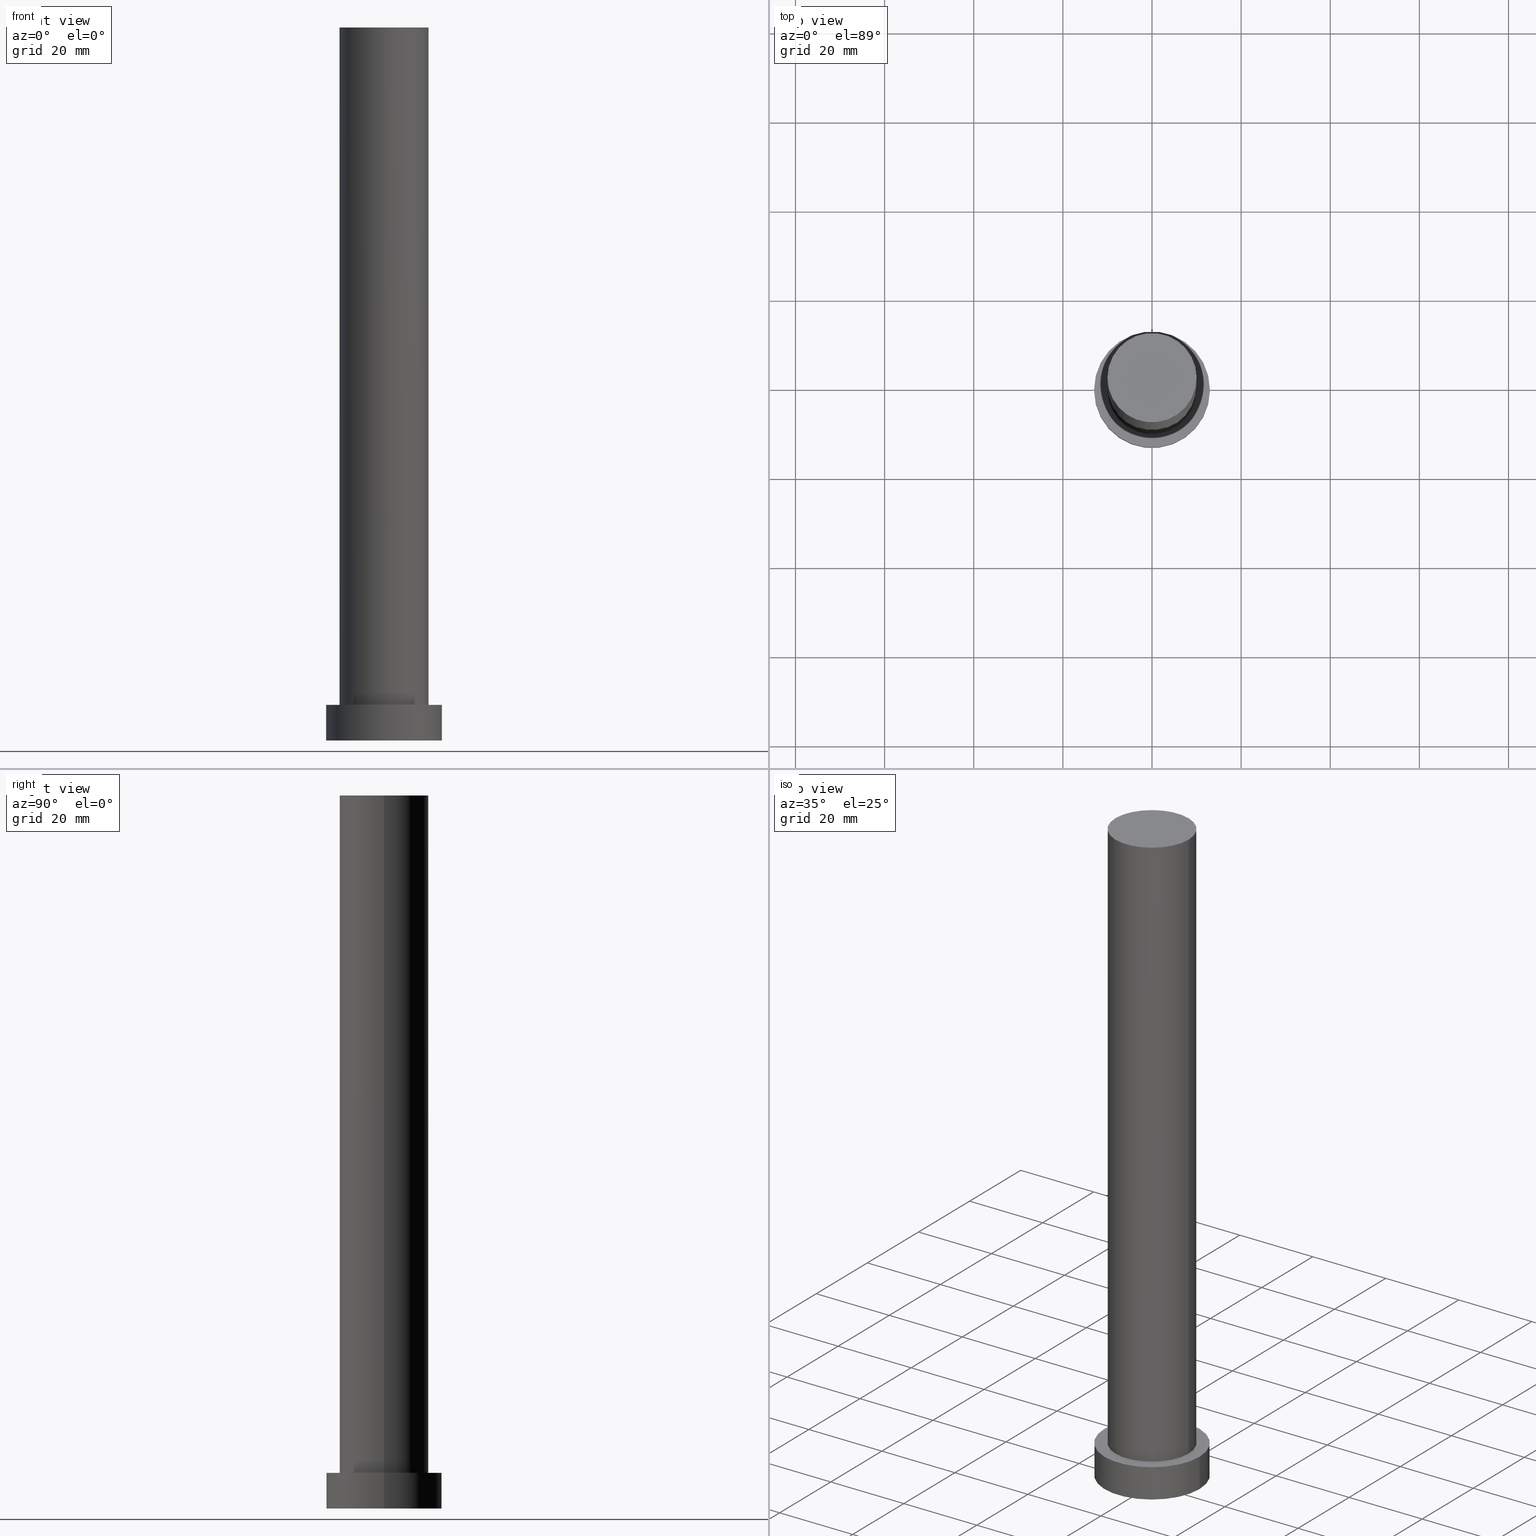
[diagram: canonical four-view strip — front | top / right | iso, engineering-drawing reading convention]
A machine part, canonical four-view strip (front | top / right | iso — engineering-drawing reading convention). The complete STEP part file that produces these views, byte-faithful:
ISO-10303-21;
HEADER;
FILE_DESCRIPTION (( 'STEP AP203' ),
    '1' );
FILE_NAME ('fc15.STEP',
    '2023-02-13T07:49:25',
    ( '' ),
    ( '' ),
    'SwSTEP 2.0',
    'SolidWorks 2019',
    '' );
FILE_SCHEMA (( 'CONFIG_CONTROL_DESIGN' ));
ENDSEC;

DATA;
#1 = AXIS2_PLACEMENT_3D ( 'NONE', #42, #127, #87 ) ;
#2 = CALENDAR_DATE ( 2023, 13, 2 ) ;
#3 = CARTESIAN_POINT ( 'NONE',  ( 0.000000000000000000, 0.000000000000000000, 8.000000000000000000 ) ) ;
#4 = CARTESIAN_POINT ( 'NONE',  ( 10.00000000000000000, 1.224646799147353256E-15, 8.000000000000000000 ) ) ;
#5 = CC_DESIGN_PERSON_AND_ORGANIZATION_ASSIGNMENT ( #203, #165, ( #143 ) ) ;
#6 = CIRCLE ( 'NONE', #117, 13.00000000000000178 ) ;
#7 = PLANE ( 'NONE',  #227 ) ;
#8 = DIRECTION ( 'NONE',  ( -1.000000000000000000, 0.000000000000000000, 0.000000000000000000 ) ) ;
#9 = DIRECTION ( 'NONE',  ( 1.000000000000000000, 0.000000000000000000, 0.000000000000000000 ) ) ;
#10 = APPROVAL_PERSON_ORGANIZATION ( #29, #171, #142 ) ;
#11 = LOCAL_TIME ( 8, 49, 25.00000000000000000, #12 ) ;
#12 = COORDINATED_UNIVERSAL_TIME_OFFSET ( 1, 0, .AHEAD. ) ;
#13 = FACE_OUTER_BOUND ( 'NONE', #90, .T. ) ;
#14 = AXIS2_PLACEMENT_3D ( 'NONE', #208, #166, #207 ) ;
#15 = DIRECTION ( 'NONE',  ( -0.000000000000000000, -0.000000000000000000, -1.000000000000000000 ) ) ;
#16 = ORIENTED_EDGE ( 'NONE', *, *, #255, .F. ) ;
#17 = ORIENTED_EDGE ( 'NONE', *, *, #149, .F. ) ;
#18 = DATE_AND_TIME ( #215, #194 ) ;
#19 = APPROVAL_ROLE ( '' ) ;
#20 = DIRECTION ( 'NONE',  ( 0.000000000000000000, 0.000000000000000000, 1.000000000000000000 ) ) ;
#21 = FACE_OUTER_BOUND ( 'NONE', #177, .T. ) ;
#22 = CYLINDRICAL_SURFACE ( 'NONE', #77, 13.00000000000000178 ) ;
#23 = FACE_OUTER_BOUND ( 'NONE', #47, .T. ) ;
#24 =( NAMED_UNIT ( * ) SI_UNIT ( $, .STERADIAN. ) SOLID_ANGLE_UNIT ( ) );
#25 = EDGE_CURVE ( 'NONE', #170, #51, #153, .T. ) ;
#26 = CIRCLE ( 'NONE', #61, 10.00000000000000000 ) ;
#27 = CC_DESIGN_DATE_AND_TIME_ASSIGNMENT ( #186, #119, ( #143 ) ) ;
#28 = DIRECTION ( 'NONE',  ( 1.000000000000000000, 0.000000000000000000, 0.000000000000000000 ) ) ;
#29 = PERSON_AND_ORGANIZATION ( #39, #224 ) ;
#30 = FACE_OUTER_BOUND ( 'NONE', #246, .T. ) ;
#31 = APPROVAL_DATE_TIME ( #93, #171 ) ;
#32 = CIRCLE ( 'NONE', #1, 13.00000000000000178 ) ;
#33 = ORIENTED_EDGE ( 'NONE', *, *, #132, .T. ) ;
#34 = PERSON_AND_ORGANIZATION ( #39, #224 ) ;
#35 = DIRECTION ( 'NONE',  ( 1.000000000000000000, 0.000000000000000000, 0.000000000000000000 ) ) ;
#36 = ORIENTED_EDGE ( 'NONE', *, *, #107, .T. ) ;
#37 = DIRECTION ( 'NONE',  ( 0.000000000000000000, 0.000000000000000000, 1.000000000000000000 ) ) ;
#38 = CALENDAR_DATE ( 2023, 13, 2 ) ;
#39 = PERSON ( 'NEUR�EN�', 'NEUR�EN�', 'NEUR�EN�', ('NEUR�EN�'), ('NEUR�EN�'), ('NEUR�EN�') ) ;
#40 = PRODUCT_DEFINITION_SHAPE ( 'NONE', 'NONE',  #236 ) ;
#41 = APPROVAL_PERSON_ORGANIZATION ( #196, #81, #154 ) ;
#42 = CARTESIAN_POINT ( 'NONE',  ( 0.000000000000000000, 0.000000000000000000, 8.000000000000000000 ) ) ;
#43 = CARTESIAN_POINT ( 'NONE',  ( -10.00000000000000000, 0.000000000000000000, 160.0000000000000000 ) ) ;
#44 = AXIS2_PLACEMENT_3D ( 'NONE', #169, #191, #237 ) ;
#45 =( NAMED_UNIT ( * ) PLANE_ANGLE_UNIT ( ) SI_UNIT ( $, .RADIAN. ) );
#46 = APPROVAL ( #97, 'NEUR�EN�' ) ;
#47 = EDGE_LOOP ( 'NONE', ( #233, #115, #36, #139 ) ) ;
#48 = CC_DESIGN_PERSON_AND_ORGANIZATION_ASSIGNMENT ( #91, #178, ( #236 ) ) ;
#49 = LOCAL_TIME ( 8, 49, 25.00000000000000000, #116 ) ;
#50 = CYLINDRICAL_SURFACE ( 'NONE', #180, 10.00000000000000000 ) ;
#51 = VERTEX_POINT ( 'NONE', #229 ) ;
#52 = CARTESIAN_POINT ( 'NONE',  ( 0.000000000000000000, 0.000000000000000000, 0.000000000000000000 ) ) ;
#53 = AXIS2_PLACEMENT_3D ( 'NONE', #162, #74, #216 ) ;
#54 = EDGE_CURVE ( 'NONE', #92, #51, #6, .T. ) ;
#55 = LINE ( 'NONE', #248, #69 ) ;
#56 = VERTEX_POINT ( 'NONE', #228 ) ;
#57 = APPROVAL_STATUS ( 'not_yet_approved' ) ;
#58 = ORIENTED_EDGE ( 'NONE', *, *, #255, .T. ) ;
#59 = MECHANICAL_CONTEXT ( 'NONE', #121, 'mechanical' ) ;
#60 = PERSON_AND_ORGANIZATION ( #39, #224 ) ;
#61 = AXIS2_PLACEMENT_3D ( 'NONE', #3, #128, #84 ) ;
#62 = CARTESIAN_POINT ( 'NONE',  ( 0.000000000000000000, 0.000000000000000000, 8.000000000000000000 ) ) ;
#63 = SECURITY_CLASSIFICATION_LEVEL ( 'unclassified' ) ;
#64 = DIRECTION ( 'NONE',  ( -0.000000000000000000, -0.000000000000000000, -1.000000000000000000 ) ) ;
#65 = AXIS2_PLACEMENT_3D ( 'NONE', #211, #37, #213 ) ;
#66 = DIRECTION ( 'NONE',  ( -0.000000000000000000, -0.000000000000000000, -1.000000000000000000 ) ) ;
#67 = CARTESIAN_POINT ( 'NONE',  ( 13.00000000000000178, 1.592040838891559293E-15, 8.000000000000000000 ) ) ;
#68 =( LENGTH_UNIT ( ) NAMED_UNIT ( * ) SI_UNIT ( .MILLI., .METRE. ) );
#69 = VECTOR ( 'NONE', #86, 1000.000000000000000 ) ;
#70 = APPROVAL_DATE_TIME ( #18, #81 ) ;
#71 = CC_DESIGN_PERSON_AND_ORGANIZATION_ASSIGNMENT ( #161, #140, ( #83 ) ) ;
#72 = ORIENTED_EDGE ( 'NONE', *, *, #25, .F. ) ;
#73 = CALENDAR_DATE ( 2023, 13, 2 ) ;
#74 = DIRECTION ( 'NONE',  ( 0.000000000000000000, 0.000000000000000000, 1.000000000000000000 ) ) ;
#75 = CIRCLE ( 'NONE', #65, 13.00000000000000178 ) ;
#76 = ORIENTED_EDGE ( 'NONE', *, *, #151, .T. ) ;
#77 = AXIS2_PLACEMENT_3D ( 'NONE', #98, #99, #205 ) ;
#78 = APPROVAL_STATUS ( 'not_yet_approved' ) ;
#79 = DIRECTION ( 'NONE',  ( -1.000000000000000000, 0.000000000000000000, 0.000000000000000000 ) ) ;
#80 = EDGE_LOOP ( 'NONE', ( #105, #96 ) ) ;
#81 = APPROVAL ( #78, 'NEUR�EN�' ) ;
#82 = AXIS2_PLACEMENT_3D ( 'NONE', #199, #173, #28 ) ;
#83 = PRODUCT ( 'fc15', 'fc15', '', ( #59 ) ) ;
#84 = DIRECTION ( 'NONE',  ( 1.000000000000000000, 0.000000000000000000, 0.000000000000000000 ) ) ;
#85 = CYLINDRICAL_SURFACE ( 'NONE', #109, 13.00000000000000178 ) ;
#86 = DIRECTION ( 'NONE',  ( -0.000000000000000000, -0.000000000000000000, -1.000000000000000000 ) ) ;
#87 = DIRECTION ( 'NONE',  ( 1.000000000000000000, 0.000000000000000000, 0.000000000000000000 ) ) ;
#88 = FACE_OUTER_BOUND ( 'NONE', #198, .T. ) ;
#89 = CLOSED_SHELL ( 'NONE', ( #135, #240, #206, #159, #242, #123, #252 ) ) ;
#90 = EDGE_LOOP ( 'NONE', ( #172, #141, #192, #76 ) ) ;
#91 = PERSON_AND_ORGANIZATION ( #39, #224 ) ;
#92 = VERTEX_POINT ( 'NONE', #202 ) ;
#93 = DATE_AND_TIME ( #113, #11 ) ;
#94 = DIRECTION ( 'NONE',  ( 1.000000000000000000, 0.000000000000000000, 0.000000000000000000 ) ) ;
#95 = ORIENTED_EDGE ( 'NONE', *, *, #149, .T. ) ;
#96 = ORIENTED_EDGE ( 'NONE', *, *, #185, .T. ) ;
#97 = APPROVAL_STATUS ( 'not_yet_approved' ) ;
#98 = CARTESIAN_POINT ( 'NONE',  ( 0.000000000000000000, 0.000000000000000000, 8.000000000000000000 ) ) ;
#99 = DIRECTION ( 'NONE',  ( -0.000000000000000000, -0.000000000000000000, -1.000000000000000000 ) ) ;
#100 = CARTESIAN_POINT ( 'NONE',  ( 0.000000000000000000, 0.000000000000000000, 8.000000000000000000 ) ) ;
#101 = CIRCLE ( 'NONE', #243, 10.00000000000000000 ) ;
#102 = DIRECTION ( 'NONE',  ( -0.000000000000000000, -0.000000000000000000, -1.000000000000000000 ) ) ;
#103 = EDGE_CURVE ( 'NONE', #214, #175, #193, .T. ) ;
#104 = CC_DESIGN_PERSON_AND_ORGANIZATION_ASSIGNMENT ( #122, #235, ( #118 ) ) ;
#105 = ORIENTED_EDGE ( 'NONE', *, *, #103, .T. ) ;
#106 = CC_DESIGN_APPROVAL ( #46, ( #143 ) ) ;
#107 = EDGE_CURVE ( 'NONE', #51, #92, #230, .T. ) ;
#108 = CARTESIAN_POINT ( 'NONE',  ( 0.000000000000000000, 0.000000000000000000, 160.0000000000000000 ) ) ;
#109 = AXIS2_PLACEMENT_3D ( 'NONE', #100, #66, #8 ) ;
#110 = ORIENTED_EDGE ( 'NONE', *, *, #151, .F. ) ;
#111 = DATE_AND_TIME ( #73, #49 ) ;
#112 = ORIENTED_EDGE ( 'NONE', *, *, #107, .F. ) ;
#113 = CALENDAR_DATE ( 2023, 13, 2 ) ;
#114 = CARTESIAN_POINT ( 'NONE',  ( 0.000000000000000000, 0.000000000000000000, 160.0000000000000000 ) ) ;
#115 = ORIENTED_EDGE ( 'NONE', *, *, #25, .T. ) ;
#116 = COORDINATED_UNIVERSAL_TIME_OFFSET ( 1, 0, .AHEAD. ) ;
#117 = AXIS2_PLACEMENT_3D ( 'NONE', #52, #253, #94 ) ;
#118 = PRODUCT_DEFINITION_FORMATION_WITH_SPECIFIED_SOURCE ( 'LIBOVOLN�', '', #83, .NOT_KNOWN. ) ;
#119 = DATE_TIME_ROLE ( 'classification_date' ) ;
#120 = UNCERTAINTY_MEASURE_WITH_UNIT (LENGTH_MEASURE( 1.000000000000000082E-05 ), #68, 'distance_accuracy_value', 'NONE');
#121 = APPLICATION_CONTEXT ( 'configuration controlled 3d designs of mechanical parts and assemblies' ) ;
#122 = PERSON_AND_ORGANIZATION ( #39, #224 ) ;
#123 = ADVANCED_FACE ( 'NONE', ( #13 ), #50, .T. ) ;
#124 = APPROVAL_DATE_TIME ( #249, #46 ) ;
#125 = AXIS2_PLACEMENT_3D ( 'NONE', #136, #179, #35 ) ;
#126 = CC_DESIGN_APPROVAL ( #171, ( #236 ) ) ;
#127 = DIRECTION ( 'NONE',  ( 0.000000000000000000, 0.000000000000000000, 1.000000000000000000 ) ) ;
#128 = DIRECTION ( 'NONE',  ( 0.000000000000000000, 0.000000000000000000, 1.000000000000000000 ) ) ;
#129 = MANIFOLD_SOLID_BREP ( 'P�idat vysunut�m3', #89 ) ;
#130 = DIRECTION ( 'NONE',  ( 1.000000000000000000, 0.000000000000000000, -0.000000000000000000 ) ) ;
#131 = DIRECTION ( 'NONE',  ( 1.000000000000000000, 0.000000000000000000, 0.000000000000000000 ) ) ;
#132 = EDGE_CURVE ( 'NONE', #170, #56, #75, .T. ) ;
#133 = CC_DESIGN_PERSON_AND_ORGANIZATION_ASSIGNMENT ( #34, #251, ( #118 ) ) ;
#134 = VERTEX_POINT ( 'NONE', #197 ) ;
#135 = ADVANCED_FACE ( 'NONE', ( #30 ), #200, .T. ) ;
#136 = CARTESIAN_POINT ( 'NONE',  ( 0.000000000000000000, 0.000000000000000000, 0.000000000000000000 ) ) ;
#137 = ORIENTED_EDGE ( 'NONE', *, *, #54, .T. ) ;
#138 = APPLICATION_PROTOCOL_DEFINITION ( 'international standard', 'config_control_design', 1994, #152 ) ;
#139 = ORIENTED_EDGE ( 'NONE', *, *, #146, .F. ) ;
#140 = PERSON_AND_ORGANIZATION_ROLE ( 'design_owner' ) ;
#141 = ORIENTED_EDGE ( 'NONE', *, *, #103, .F. ) ;
#142 = APPROVAL_ROLE ( '' ) ;
#143 = SECURITY_CLASSIFICATION ( '', '', #63 ) ;
#144 = FACE_BOUND ( 'NONE', #160, .T. ) ;
#145 = CARTESIAN_POINT ( 'NONE',  ( 0.000000000000000000, 0.000000000000000000, 0.000000000000000000 ) ) ;
#146 = EDGE_CURVE ( 'NONE', #56, #92, #55, .T. ) ;
#147 = CARTESIAN_POINT ( 'NONE',  ( 10.00000000000000000, 1.224646799147353256E-15, 160.0000000000000000 ) ) ;
#148 = ADVANCED_BREP_SHAPE_REPRESENTATION ( 'fc15', ( #129, #82 ), #209 ) ;
#149 = EDGE_CURVE ( 'NONE', #212, #134, #218, .T. ) ;
#150 = APPROVAL_PERSON_ORGANIZATION ( #60, #46, #19 ) ;
#151 = EDGE_CURVE ( 'NONE', #134, #212, #26, .T. ) ;
#152 = APPLICATION_CONTEXT ( 'configuration controlled 3d designs of mechanical parts and assemblies' ) ;
#153 = LINE ( 'NONE', #182, #226 ) ;
#154 = APPROVAL_ROLE ( '' ) ;
#155 = DIRECTION ( 'NONE',  ( -0.000000000000000000, -0.000000000000000000, -1.000000000000000000 ) ) ;
#156 = AXIS2_PLACEMENT_3D ( 'NONE', #62, #187, #131 ) ;
#157 = ORIENTED_EDGE ( 'NONE', *, *, #225, .T. ) ;
#158 = COORDINATED_UNIVERSAL_TIME_OFFSET ( 1, 0, .AHEAD. ) ;
#159 = ADVANCED_FACE ( 'NONE', ( #144, #168 ), #223, .T. ) ;
#160 = EDGE_LOOP ( 'NONE', ( #110, #17 ) ) ;
#161 = PERSON_AND_ORGANIZATION ( #39, #224 ) ;
#162 = CARTESIAN_POINT ( 'NONE',  ( 0.000000000000000000, 0.000000000000000000, 160.0000000000000000 ) ) ;
#163 = VECTOR ( 'NONE', #64, 1000.000000000000000 ) ;
#164 = PRODUCT_RELATED_PRODUCT_CATEGORY ( 'detail', '', ( #83 ) ) ;
#165 = PERSON_AND_ORGANIZATION_ROLE ( 'classification_officer' ) ;
#166 = DIRECTION ( 'NONE',  ( 0.000000000000000000, 0.000000000000000000, 1.000000000000000000 ) ) ;
#167 = AXIS2_PLACEMENT_3D ( 'NONE', #108, #155, #231 ) ;
#168 = FACE_OUTER_BOUND ( 'NONE', #234, .T. ) ;
#169 = CARTESIAN_POINT ( 'NONE',  ( 0.000000000000000000, 0.000000000000000000, 160.0000000000000000 ) ) ;
#170 = VERTEX_POINT ( 'NONE', #67 ) ;
#171 = APPROVAL ( #57, 'NEUR�EN�' ) ;
#172 = ORIENTED_EDGE ( 'NONE', *, *, #225, .F. ) ;
#173 = DIRECTION ( 'NONE',  ( 0.000000000000000000, 0.000000000000000000, 1.000000000000000000 ) ) ;
#174 = CC_DESIGN_DATE_AND_TIME_ASSIGNMENT ( #111, #176, ( #236 ) ) ;
#175 = VERTEX_POINT ( 'NONE', #147 ) ;
#176 = DATE_TIME_ROLE ( 'creation_date' ) ;
#177 = EDGE_LOOP ( 'NONE', ( #72, #16, #201, #137 ) ) ;
#178 = PERSON_AND_ORGANIZATION_ROLE ( 'creator' ) ;
#179 = DIRECTION ( 'NONE',  ( 0.000000000000000000, 0.000000000000000000, 1.000000000000000000 ) ) ;
#180 = AXIS2_PLACEMENT_3D ( 'NONE', #114, #15, #79 ) ;
#181 = LOCAL_TIME ( 8, 49, 25.00000000000000000, #184 ) ;
#182 = CARTESIAN_POINT ( 'NONE',  ( 13.00000000000000178, 1.592040838891559293E-15, 8.000000000000000000 ) ) ;
#183 = COORDINATED_UNIVERSAL_TIME_OFFSET ( 1, 0, .AHEAD. ) ;
#184 = COORDINATED_UNIVERSAL_TIME_OFFSET ( 1, 0, .AHEAD. ) ;
#185 = EDGE_CURVE ( 'NONE', #175, #214, #101, .T. ) ;
#186 = DATE_AND_TIME ( #2, #221 ) ;
#187 = DIRECTION ( 'NONE',  ( 0.000000000000000000, 0.000000000000000000, 1.000000000000000000 ) ) ;
#188 = CC_DESIGN_APPROVAL ( #81, ( #118 ) ) ;
#189 = PLANE ( 'NONE',  #44 ) ;
#190 = CARTESIAN_POINT ( 'NONE',  ( -10.00000000000000000, 0.000000000000000000, 160.0000000000000000 ) ) ;
#191 = DIRECTION ( 'NONE',  ( 0.000000000000000000, 0.000000000000000000, 1.000000000000000000 ) ) ;
#192 = ORIENTED_EDGE ( 'NONE', *, *, #219, .T. ) ;
#193 = CIRCLE ( 'NONE', #53, 10.00000000000000000 ) ;
#194 = LOCAL_TIME ( 8, 49, 25.00000000000000000, #158 ) ;
#195 = APPLICATION_PROTOCOL_DEFINITION ( 'international standard', 'config_control_design', 1994, #121 ) ;
#196 = PERSON_AND_ORGANIZATION ( #39, #224 ) ;
#197 = CARTESIAN_POINT ( 'NONE',  ( -10.00000000000000000, 0.000000000000000000, 8.000000000000000000 ) ) ;
#198 = EDGE_LOOP ( 'NONE', ( #217, #112 ) ) ;
#199 = CARTESIAN_POINT ( 'NONE',  ( 0.000000000000000000, 0.000000000000000000, 0.000000000000000000 ) ) ;
#200 = CYLINDRICAL_SURFACE ( 'NONE', #167, 10.00000000000000000 ) ;
#201 = ORIENTED_EDGE ( 'NONE', *, *, #146, .T. ) ;
#202 = CARTESIAN_POINT ( 'NONE',  ( -13.00000000000000178, 0.000000000000000000, 0.000000000000000000 ) ) ;
#203 = PERSON_AND_ORGANIZATION ( #39, #224 ) ;
#204 = SHAPE_DEFINITION_REPRESENTATION ( #40, #148 ) ;
#205 = DIRECTION ( 'NONE',  ( -1.000000000000000000, 0.000000000000000000, 0.000000000000000000 ) ) ;
#206 = ADVANCED_FACE ( 'NONE', ( #21 ), #22, .T. ) ;
#207 = DIRECTION ( 'NONE',  ( 1.000000000000000000, 0.000000000000000000, -0.000000000000000000 ) ) ;
#208 = CARTESIAN_POINT ( 'NONE',  ( 0.000000000000000000, 0.000000000000000000, 8.000000000000000000 ) ) ;
#209 =( GEOMETRIC_REPRESENTATION_CONTEXT ( 3 ) GLOBAL_UNCERTAINTY_ASSIGNED_CONTEXT ( ( #120 ) ) GLOBAL_UNIT_ASSIGNED_CONTEXT ( ( #68, #45, #24 ) ) REPRESENTATION_CONTEXT ( 'NONE', 'WORKASPACE' ) );
#210 = LINE ( 'NONE', #43, #232 ) ;
#211 = CARTESIAN_POINT ( 'NONE',  ( 0.000000000000000000, 0.000000000000000000, 8.000000000000000000 ) ) ;
#212 = VERTEX_POINT ( 'NONE', #4 ) ;
#213 = DIRECTION ( 'NONE',  ( 1.000000000000000000, 0.000000000000000000, 0.000000000000000000 ) ) ;
#214 = VERTEX_POINT ( 'NONE', #190 ) ;
#215 = CALENDAR_DATE ( 2023, 13, 2 ) ;
#216 = DIRECTION ( 'NONE',  ( 1.000000000000000000, 0.000000000000000000, 0.000000000000000000 ) ) ;
#217 = ORIENTED_EDGE ( 'NONE', *, *, #54, .F. ) ;
#218 = CIRCLE ( 'NONE', #156, 10.00000000000000000 ) ;
#219 = EDGE_CURVE ( 'NONE', #214, #134, #210, .T. ) ;
#220 = CARTESIAN_POINT ( 'NONE',  ( 0.000000000000000000, 0.000000000000000000, 160.0000000000000000 ) ) ;
#221 = LOCAL_TIME ( 8, 49, 25.00000000000000000, #183 ) ;
#222 = FACE_OUTER_BOUND ( 'NONE', #80, .T. ) ;
#223 = PLANE ( 'NONE',  #14 ) ;
#224 = ORGANIZATION ( 'NEUR�EN�', 'NEUR�EN�', '' ) ;
#225 = EDGE_CURVE ( 'NONE', #175, #212, #238, .T. ) ;
#226 = VECTOR ( 'NONE', #250, 1000.000000000000000 ) ;
#227 = AXIS2_PLACEMENT_3D ( 'NONE', #145, #20, #130 ) ;
#228 = CARTESIAN_POINT ( 'NONE',  ( -13.00000000000000178, 0.000000000000000000, 8.000000000000000000 ) ) ;
#229 = CARTESIAN_POINT ( 'NONE',  ( 13.00000000000000178, 1.592040838891559293E-15, 0.000000000000000000 ) ) ;
#230 = CIRCLE ( 'NONE', #125, 13.00000000000000178 ) ;
#231 = DIRECTION ( 'NONE',  ( -1.000000000000000000, 0.000000000000000000, 0.000000000000000000 ) ) ;
#232 = VECTOR ( 'NONE', #102, 1000.000000000000000 ) ;
#233 = ORIENTED_EDGE ( 'NONE', *, *, #132, .F. ) ;
#234 = EDGE_LOOP ( 'NONE', ( #58, #33 ) ) ;
#235 = PERSON_AND_ORGANIZATION_ROLE ( 'design_supplier' ) ;
#236 = PRODUCT_DEFINITION ( 'NEZN�M�', '', #118, #254 ) ;
#237 = DIRECTION ( 'NONE',  ( 1.000000000000000000, 0.000000000000000000, -0.000000000000000000 ) ) ;
#238 = LINE ( 'NONE', #239, #163 ) ;
#239 = CARTESIAN_POINT ( 'NONE',  ( 10.00000000000000000, 1.224646799147353256E-15, 160.0000000000000000 ) ) ;
#240 = ADVANCED_FACE ( 'NONE', ( #23 ), #85, .T. ) ;
#241 = DIRECTION ( 'NONE',  ( 0.000000000000000000, 0.000000000000000000, 1.000000000000000000 ) ) ;
#242 = ADVANCED_FACE ( 'NONE', ( #88 ), #7, .F. ) ;
#243 = AXIS2_PLACEMENT_3D ( 'NONE', #220, #241, #9 ) ;
#244 = ORIENTED_EDGE ( 'NONE', *, *, #219, .F. ) ;
#245 = ORIENTED_EDGE ( 'NONE', *, *, #185, .F. ) ;
#246 = EDGE_LOOP ( 'NONE', ( #245, #157, #95, #244 ) ) ;
#247 = CC_DESIGN_SECURITY_CLASSIFICATION ( #143, ( #118 ) ) ;
#248 = CARTESIAN_POINT ( 'NONE',  ( -13.00000000000000178, 0.000000000000000000, 8.000000000000000000 ) ) ;
#249 = DATE_AND_TIME ( #38, #181 ) ;
#250 = DIRECTION ( 'NONE',  ( -0.000000000000000000, -0.000000000000000000, -1.000000000000000000 ) ) ;
#251 = PERSON_AND_ORGANIZATION_ROLE ( 'creator' ) ;
#252 = ADVANCED_FACE ( 'NONE', ( #222 ), #189, .T. ) ;
#253 = DIRECTION ( 'NONE',  ( 0.000000000000000000, 0.000000000000000000, 1.000000000000000000 ) ) ;
#254 = DESIGN_CONTEXT ( 'detailed design', #152, 'design' ) ;
#255 = EDGE_CURVE ( 'NONE', #56, #170, #32, .T. ) ;
ENDSEC;
END-ISO-10303-21;
